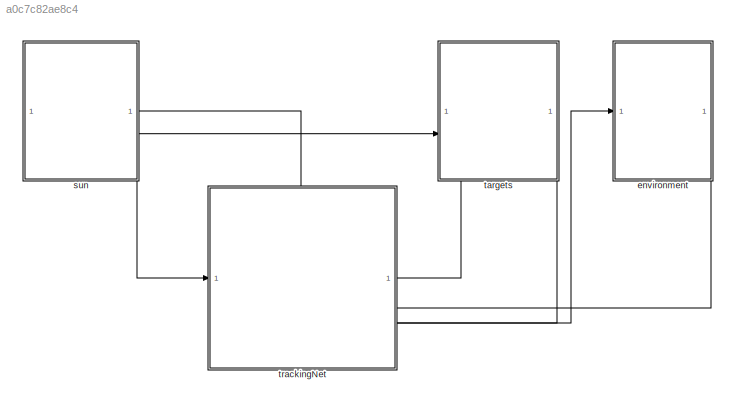
MODEL slx_a0c7c82ae8c4
KIND model
CONFIG AbsTol = auto
CONFIG EnableMultiTasking = off
CONFIG FixedStep = auto
CONFIG MaxStep = auto
CONFIG MinStep = auto
CONFIG RelTol = 1e-3
CONFIG SampleTimeConstraint = Unconstrained
CONFIG SolverName = VariableStepAuto
CONFIG StartTime = 0.0
CONFIG StopTime = 10.0
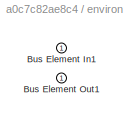
BLOCK [SubSystem] environment
  PortSchema = {"entries":[{"content":{"headerSize":26,"margin":15,"minimumSpacing":25,"sides":[{"content":{"connectorIds":["In1"]},"type":"ConnectorPlacement.EquallySpacedRectSide","uuid":"8862968b-5599-41d0-9291-c0c671b7ec34"},{"content":{"side":"RIGHT"},"type":"ConnectorPlacement.EquallySpacedRectSide","uuid":"824bb606-5208-4b2e-9988-455833bc9c0f"},{"content":{"side":"TOP"},"type":"ConnectorPlacement.EquallyS...<+396ch>
BLOCK [Inport] environment/Bus Element In1
BLOCK [Outport] environment/Bus Element Out1
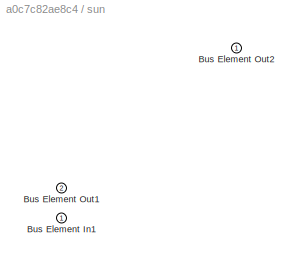
BLOCK [SubSystem] sun
  PortSchema = {"entries":[{"content":{"headerSize":26,"margin":15,"minimumSpacing":25,"sides":[{"content":{},"type":"ConnectorPlacement.EquallySpacedRectSide","uuid":"8862968b-5599-41d0-9291-c0c671b7ec34"},{"content":{"connectorIds":["Out2"],"side":"RIGHT"},"type":"ConnectorPlacement.EquallySpacedRectSide","uuid":"824bb606-5208-4b2e-9988-455833bc9c0f"},{"content":{"side":"TOP"},"type":"ConnectorPlacement.Equall...<+404ch>
BLOCK [Inport] sun/Bus Element In1
BLOCK [Outport] sun/Bus Element Out1
  Port = 2
BLOCK [Outport] sun/Bus Element Out2
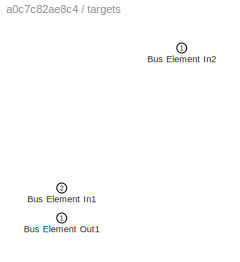
BLOCK [SubSystem] targets
  PortSchema = {"entries":[{"content":{"headerSize":26,"margin":15,"minimumSpacing":25,"sides":[{"content":{"connectorIds":["In2"]},"type":"ConnectorPlacement.EquallySpacedRectSide","uuid":"8862968b-5599-41d0-9291-c0c671b7ec34"},{"content":{"side":"RIGHT"},"type":"ConnectorPlacement.EquallySpacedRectSide","uuid":"824bb606-5208-4b2e-9988-455833bc9c0f"},{"content":{"side":"TOP"},"type":"ConnectorPlacement.EquallyS...<+402ch>
BLOCK [Inport] targets/Bus Element In1
  Port = 2
BLOCK [Inport] targets/Bus Element In2
BLOCK [Outport] targets/Bus Element Out1
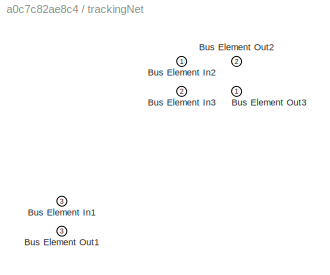
BLOCK [SubSystem] trackingNet
  PortSchema = {"entries":[{"content":{"headerSize":26,"margin":15,"minimumSpacing":25,"sides":[{"content":{"connectorIds":["Out2","In1"]},"type":"ConnectorPlacement.EquallySpacedRectSide","uuid":"8862968b-5599-41d0-9291-c0c671b7ec34"},{"content":{"connectorIds":["Out1","In3","Out3","In2"],"side":"RIGHT"},"type":"ConnectorPlacement.EquallySpacedRectSide","uuid":"824bb606-5208-4b2e-9988-455833bc9c0f"},{"content":...<+296ch>
BLOCK [Inport] trackingNet/Bus Element In1
  Port = 3
BLOCK [Inport] trackingNet/Bus Element In2
BLOCK [Inport] trackingNet/Bus Element In3
  Port = 2
BLOCK [Outport] trackingNet/Bus Element Out1
  Port = 3
BLOCK [Outport] trackingNet/Bus Element Out2
  Port = 2
BLOCK [Outport] trackingNet/Bus Element Out3
LINE environment:1 -> trackingNet:2
LINE sun:1 -> trackingNet:1
LINE sun:2 -> targets:2
LINE targets:1 -> trackingNet:3
LINE trackingNet:1 -> targets:1
LINE trackingNet:2 -> sun:1
LINE trackingNet:3 -> environment:1
